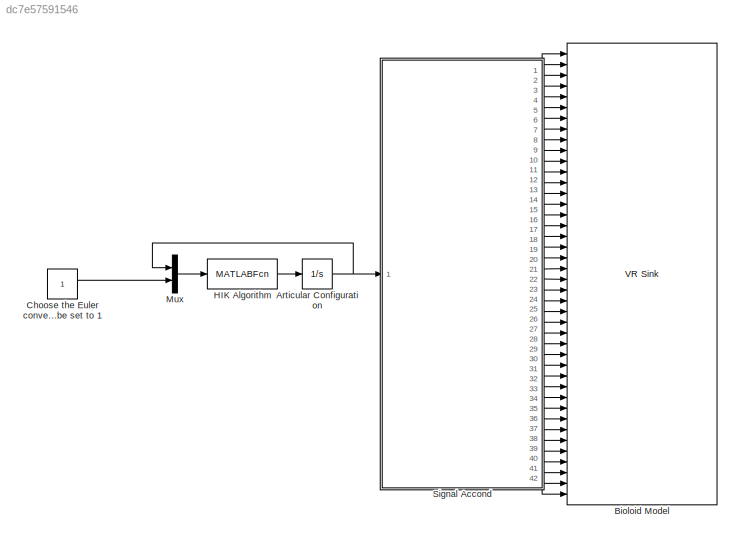
MODEL slx_dc7e57591546
KIND model
BLOCK [Integrator] Articular Configuration
  Ports = [1, 1]
BLOCK [Reference] Bioloid Model  REF=vrlib/VR Sink
  AllowVariableSize = off
  AutoView = on
  FieldsWritten = TrunkTraslation.translation.3.1.1.double#TrunkRotX.rotation.4.1.1.double#TrunkRotY.rotation.4.1.1.double#TrunkRotZ.rotation.4.1.1.double#Right_Arm.rotation.4.1.1.double#Right_Humeros1.rotation.4.1.1.double#Right_Hand1.rotation.4.1.1.double#Left_Arm.rotation.4.1.1.double#Left_Humeros1.rotation.4.1.1.double#Left_Hand1.rotation.4.1.1.double#Right_Groin.rotation.4.1.1.double#Right_Hip1.rotation.4.1.1....<+1020ch>
  FigureProperties = {'Position', 'Name', 'Viewpoint', 'CameraBound', 'CameraDirection', 'CameraPosition', 'CameraUpVector', 'ZoomFactor', 'Antialiasing', 'Headlight', 'Lighting', 'NavPanel', 'StatusBar', 'ToolBar', 'Textures', 'Transparency', 'Triad', 'Wireframe', 'NavZones', 'NavMode', 'NavSpeed', 'CaptureFileFormat', 'CaptureFileName', 'Record2DCompressMethod', 'Record2DCompressQuality', 'Record2D', 'Record2DFileNa...<+622ch>
  InstantiateOnLoad = on
  Ports = [42]
  RemoteChange = off
  RemoteView = off
  SampleTime = 0.1
  SourceBlock = vrlib/VR Sink
  SourceType = Virtual Reality Sink
  VideoDimensions = []
  ViewEnable = on
  WorldDescription = Bioloid Model for HIK
  WorldFileName = Bioloid_model_5_obj.wrl
BLOCK [Constant] Choose the Euler convention 1.- XYZ 2.- XZY 3.- XYX 4.- XZX 5.- YXZ 6.- YZX 7.- YXY 8.- YZY 9.- ZXY 10.- ZYX 11.- ZXZ 12.- ZYZ if any other is chosen it will be set to 1
BLOCK [MATLABFcn] HIK Algorithm
  MATLABFcn = Bioloid_HIK (u(1:24),u(25))
  OutputDimensions = 24
  Ports = [1, 1]
BLOCK [Mux] Mux
  DisplayOption = bar
  Inputs = 2
  Ports = [2, 1]
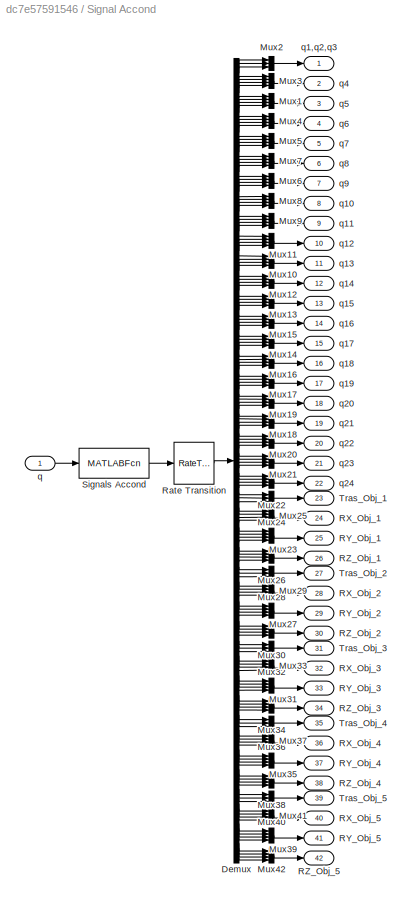
BLOCK [SubSystem] Signal Accond
  FunctionWithSeparateData = off
  MaskHideContents = off
  MinAlgLoopOccurrences = off
  Opaque = off
  Ports = [1, 42]
  PropExecContextOutsideSubsystem = off
  RTWSystemCode = Auto
  RequestExecContextInheritance = off
BLOCK [Demux] Signal Accond/Demux
  DisplayOption = bar
  Outputs = 162
  Ports = [1, 162]
BLOCK [Mux] Signal Accond/Mux1
  DisplayOption = bar
  Ports = [4, 1]
BLOCK [Mux] Signal Accond/Mux10
  DisplayOption = bar
  Ports = [4, 1]
BLOCK [Mux] Signal Accond/Mux11
  DisplayOption = bar
  Ports = [4, 1]
BLOCK [Mux] Signal Accond/Mux12
  DisplayOption = bar
  Ports = [4, 1]
BLOCK [Mux] Signal Accond/Mux13
  DisplayOption = bar
  Ports = [4, 1]
BLOCK [Mux] Signal Accond/Mux14
  DisplayOption = bar
  Ports = [4, 1]
BLOCK [Mux] Signal Accond/Mux15
  DisplayOption = bar
  Ports = [4, 1]
BLOCK [Mux] Signal Accond/Mux16
  DisplayOption = bar
  Ports = [4, 1]
BLOCK [Mux] Signal Accond/Mux17
  DisplayOption = bar
  Ports = [4, 1]
BLOCK [Mux] Signal Accond/Mux18
  DisplayOption = bar
  Ports = [4, 1]
BLOCK [Mux] Signal Accond/Mux19
  DisplayOption = bar
  Ports = [4, 1]
BLOCK [Mux] Signal Accond/Mux2
  DisplayOption = bar
  Inputs = 3
  Ports = [3, 1]
BLOCK [Mux] Signal Accond/Mux20
  DisplayOption = bar
  Ports = [4, 1]
BLOCK [Mux] Signal Accond/Mux21
  DisplayOption = bar
  Ports = [4, 1]
BLOCK [Mux] Signal Accond/Mux22
  DisplayOption = bar
  Ports = [4, 1]
BLOCK [Mux] Signal Accond/Mux23
  DisplayOption = bar
  Ports = [4, 1]
BLOCK [Mux] Signal Accond/Mux24
  DisplayOption = bar
  Inputs = 3
  Ports = [3, 1]
BLOCK [Mux] Signal Accond/Mux25
  DisplayOption = bar
  Ports = [4, 1]
BLOCK [Mux] Signal Accond/Mux26
  DisplayOption = bar
  Ports = [4, 1]
BLOCK [Mux] Signal Accond/Mux27
  DisplayOption = bar
  Ports = [4, 1]
BLOCK [Mux] Signal Accond/Mux28
  DisplayOption = bar
  Inputs = 3
  Ports = [3, 1]
BLOCK [Mux] Signal Accond/Mux29
  DisplayOption = bar
  Ports = [4, 1]
BLOCK [Mux] Signal Accond/Mux3
  DisplayOption = bar
  Ports = [4, 1]
BLOCK [Mux] Signal Accond/Mux30
  DisplayOption = bar
  Ports = [4, 1]
BLOCK [Mux] Signal Accond/Mux31
  DisplayOption = bar
  Ports = [4, 1]
BLOCK [Mux] Signal Accond/Mux32
  DisplayOption = bar
  Inputs = 3
  Ports = [3, 1]
BLOCK [Mux] Signal Accond/Mux33
  DisplayOption = bar
  Ports = [4, 1]
BLOCK [Mux] Signal Accond/Mux34
  DisplayOption = bar
  Ports = [4, 1]
BLOCK [Mux] Signal Accond/Mux35
  DisplayOption = bar
  Ports = [4, 1]
BLOCK [Mux] Signal Accond/Mux36
  DisplayOption = bar
  Inputs = 3
  Ports = [3, 1]
BLOCK [Mux] Signal Accond/Mux37
  DisplayOption = bar
  Ports = [4, 1]
BLOCK [Mux] Signal Accond/Mux38
  DisplayOption = bar
  Ports = [4, 1]
BLOCK [Mux] Signal Accond/Mux39
  DisplayOption = bar
  Ports = [4, 1]
BLOCK [Mux] Signal Accond/Mux4
  DisplayOption = bar
  Ports = [4, 1]
BLOCK [Mux] Signal Accond/Mux40
  DisplayOption = bar
  Inputs = 3
  Ports = [3, 1]
BLOCK [Mux] Signal Accond/Mux41
  DisplayOption = bar
  Ports = [4, 1]
BLOCK [Mux] Signal Accond/Mux42
  DisplayOption = bar
  Ports = [4, 1]
BLOCK [Mux] Signal Accond/Mux5
  DisplayOption = bar
  Ports = [4, 1]
BLOCK [Mux] Signal Accond/Mux6
  DisplayOption = bar
  Ports = [4, 1]
BLOCK [Mux] Signal Accond/Mux7
  DisplayOption = bar
  Ports = [4, 1]
BLOCK [Mux] Signal Accond/Mux8
  DisplayOption = bar
  Ports = [4, 1]
BLOCK [Mux] Signal Accond/Mux9
  DisplayOption = bar
  Ports = [4, 1]
BLOCK [Outport] Signal Accond/RX_Obj_1
  IconDisplay = Port number
  Port = 24
BLOCK [Outport] Signal Accond/RX_Obj_2
  IconDisplay = Port number
  Port = 28
BLOCK [Outport] Signal Accond/RX_Obj_3
  IconDisplay = Port number
  Port = 32
BLOCK [Outport] Signal Accond/RX_Obj_4
  IconDisplay = Port number
  Port = 36
BLOCK [Outport] Signal Accond/RX_Obj_5
  IconDisplay = Port number
  Port = 40
BLOCK [Outport] Signal Accond/RY_Obj_1
  IconDisplay = Port number
  Port = 25
BLOCK [Outport] Signal Accond/RY_Obj_2
  IconDisplay = Port number
  Port = 29
BLOCK [Outport] Signal Accond/RY_Obj_3
  IconDisplay = Port number
  Port = 33
BLOCK [Outport] Signal Accond/RY_Obj_4
  IconDisplay = Port number
  Port = 37
BLOCK [Outport] Signal Accond/RY_Obj_5
  IconDisplay = Port number
  Port = 41
BLOCK [Outport] Signal Accond/RZ_Obj_1
  IconDisplay = Port number
  Port = 26
BLOCK [Outport] Signal Accond/RZ_Obj_2
  IconDisplay = Port number
  Port = 30
BLOCK [Outport] Signal Accond/RZ_Obj_3
  IconDisplay = Port number
  Port = 34
BLOCK [Outport] Signal Accond/RZ_Obj_4
  IconDisplay = Port number
  Port = 38
BLOCK [Outport] Signal Accond/RZ_Obj_5
  IconDisplay = Port number
  Port = 42
BLOCK [RateTransition] Signal Accond/Rate Transition
  OutPortSampleTime = 0.1
BLOCK [MATLABFcn] Signal Accond/Signals Accond 
  MATLABFcn = Bioloid_Signals2VRML(u)
  OutputDimensions = 162
  Ports = [1, 1]
BLOCK [Outport] Signal Accond/Tras_Obj_1
  IconDisplay = Port number
  Port = 23
BLOCK [Outport] Signal Accond/Tras_Obj_2
  IconDisplay = Port number
  Port = 27
BLOCK [Outport] Signal Accond/Tras_Obj_3
  IconDisplay = Port number
  Port = 31
BLOCK [Outport] Signal Accond/Tras_Obj_4
  IconDisplay = Port number
  Port = 35
BLOCK [Outport] Signal Accond/Tras_Obj_5
  IconDisplay = Port number
  Port = 39
BLOCK [Inport] Signal Accond/q
  IconDisplay = Port number
BLOCK [Outport] Signal Accond/q1,q2,q3
  IconDisplay = Port number
BLOCK [Outport] Signal Accond/q10
  IconDisplay = Port number
  Port = 8
BLOCK [Outport] Signal Accond/q11
  IconDisplay = Port number
  Port = 9
BLOCK [Outport] Signal Accond/q12
  IconDisplay = Port number
  Port = 10
BLOCK [Outport] Signal Accond/q13
  IconDisplay = Port number
  Port = 11
BLOCK [Outport] Signal Accond/q14
  IconDisplay = Port number
  Port = 12
BLOCK [Outport] Signal Accond/q15
  IconDisplay = Port number
  Port = 13
BLOCK [Outport] Signal Accond/q16
  IconDisplay = Port number
  Port = 14
BLOCK [Outport] Signal Accond/q17
  IconDisplay = Port number
  Port = 15
BLOCK [Outport] Signal Accond/q18
  IconDisplay = Port number
  Port = 16
BLOCK [Outport] Signal Accond/q19
  IconDisplay = Port number
  Port = 17
BLOCK [Outport] Signal Accond/q20
  IconDisplay = Port number
  Port = 18
BLOCK [Outport] Signal Accond/q21
  IconDisplay = Port number
  Port = 19
BLOCK [Outport] Signal Accond/q22
  IconDisplay = Port number
  Port = 20
BLOCK [Outport] Signal Accond/q23
  IconDisplay = Port number
  Port = 21
BLOCK [Outport] Signal Accond/q24
  IconDisplay = Port number
  Port = 22
BLOCK [Outport] Signal Accond/q4
  IconDisplay = Port number
  Port = 2
BLOCK [Outport] Signal Accond/q5
  IconDisplay = Port number
  Port = 3
BLOCK [Outport] Signal Accond/q6
  IconDisplay = Port number
  Port = 4
BLOCK [Outport] Signal Accond/q7
  IconDisplay = Port number
  Port = 5
BLOCK [Outport] Signal Accond/q8
  IconDisplay = Port number
  Port = 6
BLOCK [Outport] Signal Accond/q9
  IconDisplay = Port number
  Port = 7
NET Articular Configuration:1 -> Mux:1, Signal Accond:1
LINE Choose the Euler convention 1.- XYZ 2.- XZY 3.- XYX 4.- XZX 5.- YXZ 6.- YZX 7.- YXY 8.- YZY 9.- ZXY 10.- ZYX 11.- ZXZ 12.- ZYZ if any other is chosen it will be set to 1:1 -> Mux:2
LINE HIK Algorithm:1 -> Articular Configuration:1
LINE Mux:1 -> HIK Algorithm:1
LINE Signal Accond/Demux:1 -> Signal Accond/Mux2:1
LINE Signal Accond/Demux:10 -> Signal Accond/Mux1:3
LINE Signal Accond/Demux:100 -> Signal Accond/Mux26:2
LINE Signal Accond/Demux:101 -> Signal Accond/Mux26:3
LINE Signal Accond/Demux:102 -> Signal Accond/Mux26:4
LINE Signal Accond/Demux:103 -> Signal Accond/Mux28:1
LINE Signal Accond/Demux:104 -> Signal Accond/Mux28:2
LINE Signal Accond/Demux:105 -> Signal Accond/Mux28:3
LINE Signal Accond/Demux:106 -> Signal Accond/Mux29:1
LINE Signal Accond/Demux:107 -> Signal Accond/Mux29:2
LINE Signal Accond/Demux:108 -> Signal Accond/Mux29:3
LINE Signal Accond/Demux:109 -> Signal Accond/Mux29:4
LINE Signal Accond/Demux:11 -> Signal Accond/Mux1:4
LINE Signal Accond/Demux:110 -> Signal Accond/Mux27:1
LINE Signal Accond/Demux:111 -> Signal Accond/Mux27:2
LINE Signal Accond/Demux:112 -> Signal Accond/Mux27:3
LINE Signal Accond/Demux:113 -> Signal Accond/Mux27:4
LINE Signal Accond/Demux:114 -> Signal Accond/Mux30:1
LINE Signal Accond/Demux:115 -> Signal Accond/Mux30:2
LINE Signal Accond/Demux:116 -> Signal Accond/Mux30:3
LINE Signal Accond/Demux:117 -> Signal Accond/Mux30:4
LINE Signal Accond/Demux:118 -> Signal Accond/Mux32:1
LINE Signal Accond/Demux:119 -> Signal Accond/Mux32:2
LINE Signal Accond/Demux:12 -> Signal Accond/Mux4:1
LINE Signal Accond/Demux:120 -> Signal Accond/Mux32:3
LINE Signal Accond/Demux:121 -> Signal Accond/Mux33:1
LINE Signal Accond/Demux:122 -> Signal Accond/Mux33:2
LINE Signal Accond/Demux:123 -> Signal Accond/Mux33:3
LINE Signal Accond/Demux:124 -> Signal Accond/Mux33:4
LINE Signal Accond/Demux:125 -> Signal Accond/Mux31:1
LINE Signal Accond/Demux:126 -> Signal Accond/Mux31:2
LINE Signal Accond/Demux:127 -> Signal Accond/Mux31:3
LINE Signal Accond/Demux:128 -> Signal Accond/Mux31:4
LINE Signal Accond/Demux:129 -> Signal Accond/Mux34:1
LINE Signal Accond/Demux:13 -> Signal Accond/Mux4:2
LINE Signal Accond/Demux:130 -> Signal Accond/Mux34:2
LINE Signal Accond/Demux:131 -> Signal Accond/Mux34:3
LINE Signal Accond/Demux:132 -> Signal Accond/Mux34:4
LINE Signal Accond/Demux:133 -> Signal Accond/Mux36:1
LINE Signal Accond/Demux:134 -> Signal Accond/Mux36:2
LINE Signal Accond/Demux:135 -> Signal Accond/Mux36:3
LINE Signal Accond/Demux:136 -> Signal Accond/Mux37:1
LINE Signal Accond/Demux:137 -> Signal Accond/Mux37:2
LINE Signal Accond/Demux:138 -> Signal Accond/Mux37:3
LINE Signal Accond/Demux:139 -> Signal Accond/Mux37:4
LINE Signal Accond/Demux:14 -> Signal Accond/Mux4:3
LINE Signal Accond/Demux:140 -> Signal Accond/Mux35:1
LINE Signal Accond/Demux:141 -> Signal Accond/Mux35:2
LINE Signal Accond/Demux:142 -> Signal Accond/Mux35:3
LINE Signal Accond/Demux:143 -> Signal Accond/Mux35:4
LINE Signal Accond/Demux:144 -> Signal Accond/Mux38:1
LINE Signal Accond/Demux:145 -> Signal Accond/Mux38:2
LINE Signal Accond/Demux:146 -> Signal Accond/Mux38:3
LINE Signal Accond/Demux:147 -> Signal Accond/Mux38:4
LINE Signal Accond/Demux:148 -> Signal Accond/Mux40:1
LINE Signal Accond/Demux:149 -> Signal Accond/Mux40:2
LINE Signal Accond/Demux:15 -> Signal Accond/Mux4:4
LINE Signal Accond/Demux:150 -> Signal Accond/Mux40:3
LINE Signal Accond/Demux:151 -> Signal Accond/Mux41:1
LINE Signal Accond/Demux:152 -> Signal Accond/Mux41:2
LINE Signal Accond/Demux:153 -> Signal Accond/Mux41:3
LINE Signal Accond/Demux:154 -> Signal Accond/Mux41:4
LINE Signal Accond/Demux:155 -> Signal Accond/Mux39:1
LINE Signal Accond/Demux:156 -> Signal Accond/Mux39:2
LINE Signal Accond/Demux:157 -> Signal Accond/Mux39:3
LINE Signal Accond/Demux:158 -> Signal Accond/Mux39:4
LINE Signal Accond/Demux:159 -> Signal Accond/Mux42:1
LINE Signal Accond/Demux:16 -> Signal Accond/Mux5:1
LINE Signal Accond/Demux:160 -> Signal Accond/Mux42:2
LINE Signal Accond/Demux:161 -> Signal Accond/Mux42:3
LINE Signal Accond/Demux:162 -> Signal Accond/Mux42:4
LINE Signal Accond/Demux:17 -> Signal Accond/Mux5:2
LINE Signal Accond/Demux:18 -> Signal Accond/Mux5:3
LINE Signal Accond/Demux:19 -> Signal Accond/Mux5:4
LINE Signal Accond/Demux:2 -> Signal Accond/Mux2:2
LINE Signal Accond/Demux:20 -> Signal Accond/Mux7:1
LINE Signal Accond/Demux:21 -> Signal Accond/Mux7:2
LINE Signal Accond/Demux:22 -> Signal Accond/Mux7:3
LINE Signal Accond/Demux:23 -> Signal Accond/Mux7:4
LINE Signal Accond/Demux:24 -> Signal Accond/Mux6:1
LINE Signal Accond/Demux:25 -> Signal Accond/Mux6:2
LINE Signal Accond/Demux:26 -> Signal Accond/Mux6:3
LINE Signal Accond/Demux:27 -> Signal Accond/Mux6:4
LINE Signal Accond/Demux:28 -> Signal Accond/Mux8:1
LINE Signal Accond/Demux:29 -> Signal Accond/Mux8:2
LINE Signal Accond/Demux:3 -> Signal Accond/Mux2:3
LINE Signal Accond/Demux:30 -> Signal Accond/Mux8:3
LINE Signal Accond/Demux:31 -> Signal Accond/Mux8:4
LINE Signal Accond/Demux:32 -> Signal Accond/Mux9:1
LINE Signal Accond/Demux:33 -> Signal Accond/Mux9:2
LINE Signal Accond/Demux:34 -> Signal Accond/Mux9:3
LINE Signal Accond/Demux:35 -> Signal Accond/Mux9:4
LINE Signal Accond/Demux:36 -> Signal Accond/Mux11:1
LINE Signal Accond/Demux:37 -> Signal Accond/Mux11:2
LINE Signal Accond/Demux:38 -> Signal Accond/Mux11:3
LINE Signal Accond/Demux:39 -> Signal Accond/Mux11:4
LINE Signal Accond/Demux:4 -> Signal Accond/Mux3:1
LINE Signal Accond/Demux:40 -> Signal Accond/Mux10:1
LINE Signal Accond/Demux:41 -> Signal Accond/Mux10:2
LINE Signal Accond/Demux:42 -> Signal Accond/Mux10:3
LINE Signal Accond/Demux:43 -> Signal Accond/Mux10:4
LINE Signal Accond/Demux:44 -> Signal Accond/Mux12:1
LINE Signal Accond/Demux:45 -> Signal Accond/Mux12:2
LINE Signal Accond/Demux:46 -> Signal Accond/Mux12:3
LINE Signal Accond/Demux:47 -> Signal Accond/Mux12:4
LINE Signal Accond/Demux:48 -> Signal Accond/Mux13:1
LINE Signal Accond/Demux:49 -> Signal Accond/Mux13:2
LINE Signal Accond/Demux:5 -> Signal Accond/Mux3:2
LINE Signal Accond/Demux:50 -> Signal Accond/Mux13:3
LINE Signal Accond/Demux:51 -> Signal Accond/Mux13:4
LINE Signal Accond/Demux:52 -> Signal Accond/Mux15:1
LINE Signal Accond/Demux:53 -> Signal Accond/Mux15:2
LINE Signal Accond/Demux:54 -> Signal Accond/Mux15:3
LINE Signal Accond/Demux:55 -> Signal Accond/Mux15:4
LINE Signal Accond/Demux:56 -> Signal Accond/Mux14:1
LINE Signal Accond/Demux:57 -> Signal Accond/Mux14:2
LINE Signal Accond/Demux:58 -> Signal Accond/Mux14:3
LINE Signal Accond/Demux:59 -> Signal Accond/Mux14:4
LINE Signal Accond/Demux:6 -> Signal Accond/Mux3:3
LINE Signal Accond/Demux:60 -> Signal Accond/Mux16:1
LINE Signal Accond/Demux:61 -> Signal Accond/Mux16:2
LINE Signal Accond/Demux:62 -> Signal Accond/Mux16:3
LINE Signal Accond/Demux:63 -> Signal Accond/Mux16:4
LINE Signal Accond/Demux:64 -> Signal Accond/Mux17:1
LINE Signal Accond/Demux:65 -> Signal Accond/Mux17:2
LINE Signal Accond/Demux:66 -> Signal Accond/Mux17:3
LINE Signal Accond/Demux:67 -> Signal Accond/Mux17:4
LINE Signal Accond/Demux:68 -> Signal Accond/Mux19:1
LINE Signal Accond/Demux:69 -> Signal Accond/Mux19:2
LINE Signal Accond/Demux:7 -> Signal Accond/Mux3:4
LINE Signal Accond/Demux:70 -> Signal Accond/Mux19:3
LINE Signal Accond/Demux:71 -> Signal Accond/Mux19:4
LINE Signal Accond/Demux:72 -> Signal Accond/Mux18:1
LINE Signal Accond/Demux:73 -> Signal Accond/Mux18:2
LINE Signal Accond/Demux:74 -> Signal Accond/Mux18:3
LINE Signal Accond/Demux:75 -> Signal Accond/Mux18:4
LINE Signal Accond/Demux:76 -> Signal Accond/Mux20:1
LINE Signal Accond/Demux:77 -> Signal Accond/Mux20:2
LINE Signal Accond/Demux:78 -> Signal Accond/Mux20:3
LINE Signal Accond/Demux:79 -> Signal Accond/Mux20:4
LINE Signal Accond/Demux:8 -> Signal Accond/Mux1:1
LINE Signal Accond/Demux:80 -> Signal Accond/Mux21:1
LINE Signal Accond/Demux:81 -> Signal Accond/Mux21:2
LINE Signal Accond/Demux:82 -> Signal Accond/Mux21:3
LINE Signal Accond/Demux:83 -> Signal Accond/Mux21:4
LINE Signal Accond/Demux:84 -> Signal Accond/Mux22:1
LINE Signal Accond/Demux:85 -> Signal Accond/Mux22:2
LINE Signal Accond/Demux:86 -> Signal Accond/Mux22:3
LINE Signal Accond/Demux:87 -> Signal Accond/Mux22:4
LINE Signal Accond/Demux:88 -> Signal Accond/Mux24:1
LINE Signal Accond/Demux:89 -> Signal Accond/Mux24:2
LINE Signal Accond/Demux:9 -> Signal Accond/Mux1:2
LINE Signal Accond/Demux:90 -> Signal Accond/Mux24:3
LINE Signal Accond/Demux:91 -> Signal Accond/Mux25:1
LINE Signal Accond/Demux:92 -> Signal Accond/Mux25:2
LINE Signal Accond/Demux:93 -> Signal Accond/Mux25:3
LINE Signal Accond/Demux:94 -> Signal Accond/Mux25:4
LINE Signal Accond/Demux:95 -> Signal Accond/Mux23:1
LINE Signal Accond/Demux:96 -> Signal Accond/Mux23:2
LINE Signal Accond/Demux:97 -> Signal Accond/Mux23:3
LINE Signal Accond/Demux:98 -> Signal Accond/Mux23:4
LINE Signal Accond/Demux:99 -> Signal Accond/Mux26:1
LINE Signal Accond/Mux10:1 -> Signal Accond/q13:1
LINE Signal Accond/Mux11:1 -> Signal Accond/q12:1
LINE Signal Accond/Mux12:1 -> Signal Accond/q14:1
LINE Signal Accond/Mux13:1 -> Signal Accond/q15:1
LINE Signal Accond/Mux14:1 -> Signal Accond/q17:1
LINE Signal Accond/Mux15:1 -> Signal Accond/q16:1
LINE Signal Accond/Mux16:1 -> Signal Accond/q18:1
LINE Signal Accond/Mux17:1 -> Signal Accond/q19:1
LINE Signal Accond/Mux18:1 -> Signal Accond/q21:1
LINE Signal Accond/Mux19:1 -> Signal Accond/q20:1
LINE Signal Accond/Mux1:1 -> Signal Accond/q5:1
LINE Signal Accond/Mux20:1 -> Signal Accond/q22:1
LINE Signal Accond/Mux21:1 -> Signal Accond/q23:1
LINE Signal Accond/Mux22:1 -> Signal Accond/q24:1
LINE Signal Accond/Mux23:1 -> Signal Accond/RY_Obj_1:1
LINE Signal Accond/Mux24:1 -> Signal Accond/Tras_Obj_1:1
LINE Signal Accond/Mux25:1 -> Signal Accond/RX_Obj_1:1
LINE Signal Accond/Mux26:1 -> Signal Accond/RZ_Obj_1:1
LINE Signal Accond/Mux27:1 -> Signal Accond/RY_Obj_2:1
LINE Signal Accond/Mux28:1 -> Signal Accond/Tras_Obj_2:1
LINE Signal Accond/Mux29:1 -> Signal Accond/RX_Obj_2:1
LINE Signal Accond/Mux2:1 -> Signal Accond/q1,q2,q3:1
LINE Signal Accond/Mux30:1 -> Signal Accond/RZ_Obj_2:1
LINE Signal Accond/Mux31:1 -> Signal Accond/RY_Obj_3:1
LINE Signal Accond/Mux32:1 -> Signal Accond/Tras_Obj_3:1
LINE Signal Accond/Mux33:1 -> Signal Accond/RX_Obj_3:1
LINE Signal Accond/Mux34:1 -> Signal Accond/RZ_Obj_3:1
LINE Signal Accond/Mux35:1 -> Signal Accond/RY_Obj_4:1
LINE Signal Accond/Mux36:1 -> Signal Accond/Tras_Obj_4:1
LINE Signal Accond/Mux37:1 -> Signal Accond/RX_Obj_4:1
LINE Signal Accond/Mux38:1 -> Signal Accond/RZ_Obj_4:1
LINE Signal Accond/Mux39:1 -> Signal Accond/RY_Obj_5:1
LINE Signal Accond/Mux3:1 -> Signal Accond/q4:1
LINE Signal Accond/Mux40:1 -> Signal Accond/Tras_Obj_5:1
LINE Signal Accond/Mux41:1 -> Signal Accond/RX_Obj_5:1
LINE Signal Accond/Mux42:1 -> Signal Accond/RZ_Obj_5:1
LINE Signal Accond/Mux4:1 -> Signal Accond/q6:1
LINE Signal Accond/Mux5:1 -> Signal Accond/q7:1
LINE Signal Accond/Mux6:1 -> Signal Accond/q9:1
LINE Signal Accond/Mux7:1 -> Signal Accond/q8:1
LINE Signal Accond/Mux8:1 -> Signal Accond/q10:1
LINE Signal Accond/Mux9:1 -> Signal Accond/q11:1
LINE Signal Accond/Rate Transition:1 -> Signal Accond/Demux:1
LINE Signal Accond/Signals Accond :1 -> Signal Accond/Rate Transition:1
LINE Signal Accond/q:1 -> Signal Accond/Signals Accond :1
LINE Signal Accond:1 -> Bioloid Model:1
LINE Signal Accond:10 -> Bioloid Model:10
LINE Signal Accond:11 -> Bioloid Model:11
LINE Signal Accond:12 -> Bioloid Model:12
LINE Signal Accond:13 -> Bioloid Model:13
LINE Signal Accond:14 -> Bioloid Model:14
LINE Signal Accond:15 -> Bioloid Model:15
LINE Signal Accond:16 -> Bioloid Model:16
LINE Signal Accond:17 -> Bioloid Model:17
LINE Signal Accond:18 -> Bioloid Model:18
LINE Signal Accond:19 -> Bioloid Model:19
LINE Signal Accond:2 -> Bioloid Model:2
LINE Signal Accond:20 -> Bioloid Model:20
LINE Signal Accond:21 -> Bioloid Model:21
LINE Signal Accond:22 -> Bioloid Model:22
LINE Signal Accond:23 -> Bioloid Model:23
LINE Signal Accond:24 -> Bioloid Model:24
LINE Signal Accond:25 -> Bioloid Model:25
LINE Signal Accond:26 -> Bioloid Model:26
LINE Signal Accond:27 -> Bioloid Model:27
LINE Signal Accond:28 -> Bioloid Model:28
LINE Signal Accond:29 -> Bioloid Model:29
LINE Signal Accond:3 -> Bioloid Model:3
LINE Signal Accond:30 -> Bioloid Model:30
LINE Signal Accond:31 -> Bioloid Model:31
LINE Signal Accond:32 -> Bioloid Model:32
LINE Signal Accond:33 -> Bioloid Model:33
LINE Signal Accond:34 -> Bioloid Model:34
LINE Signal Accond:35 -> Bioloid Model:35
LINE Signal Accond:36 -> Bioloid Model:36
LINE Signal Accond:37 -> Bioloid Model:37
LINE Signal Accond:38 -> Bioloid Model:38
LINE Signal Accond:39 -> Bioloid Model:39
LINE Signal Accond:4 -> Bioloid Model:4
LINE Signal Accond:40 -> Bioloid Model:40
LINE Signal Accond:41 -> Bioloid Model:41
LINE Signal Accond:42 -> Bioloid Model:42
LINE Signal Accond:5 -> Bioloid Model:5
LINE Signal Accond:6 -> Bioloid Model:6
LINE Signal Accond:7 -> Bioloid Model:7
LINE Signal Accond:8 -> Bioloid Model:8
LINE Signal Accond:9 -> Bioloid Model:9
note: NET lines group one-source signal fan-out (src -> all destinations, sorted); 1:1 wires keep LINE
